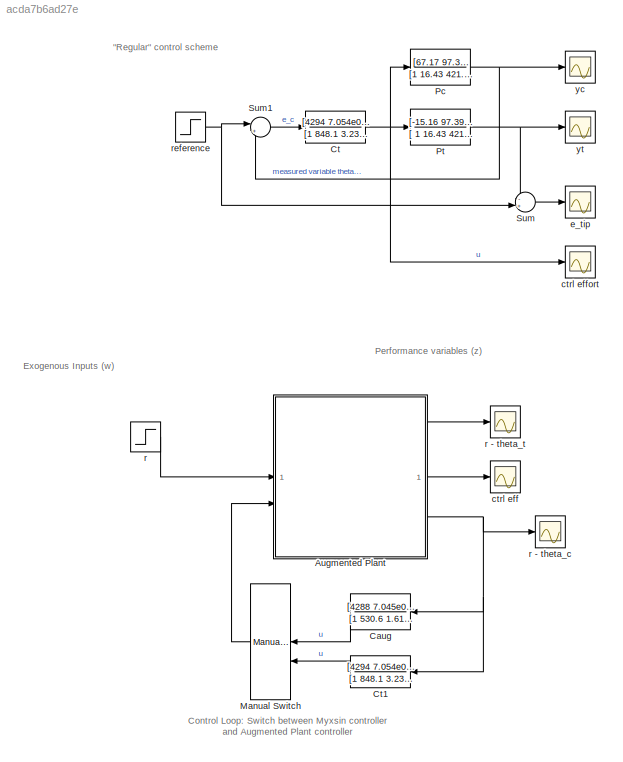
MODEL slx_acda7b6ad27e
KIND model
CONFIG AbsTol = auto
CONFIG EnableMultiTasking = off
CONFIG FixedStep = auto
CONFIG MaxStep = auto
CONFIG MinStep = auto
CONFIG RelTol = 1e-3
CONFIG SampleTimeConstraint = Unconstrained
CONFIG SolverName = VariableStepAuto
CONFIG StartTime = 0.0
CONFIG StopTime = 10.0
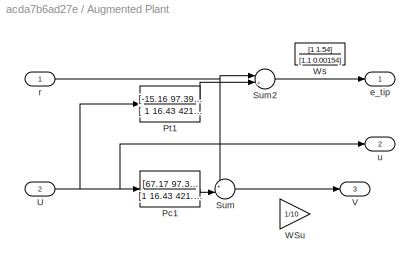
BLOCK [SubSystem] Augmented Plant
BLOCK [Outport] Augmented Plant/ V
  Port = 3
BLOCK [TransferFcn] Augmented Plant/Pc1
  Denominator = [1 16.43 421.6 0 0]
  Numerator = [67.17   97.39 2500]
BLOCK [TransferFcn] Augmented Plant/Pt1
  Denominator = [ 1 16.43 421.6 0 0]
  Numerator = [-15.16 97.39 2500]
BLOCK [Sum] Augmented Plant/Sum
  Inputs = +-|
BLOCK [Sum] Augmented Plant/Sum2
  Inputs = |+-
BLOCK [Inport] Augmented Plant/U
  Port = 2
BLOCK [Gain] Augmented Plant/WSu
  Gain = 1/10
BLOCK [TransferFcn] Augmented Plant/Ws
  Denominator = [1.1 0.00154]
  Numerator = [1 1.54]
BLOCK [Outport] Augmented Plant/e_tip
BLOCK [Inport] Augmented Plant/r
BLOCK [Outport] Augmented Plant/u
  Port = 2
BLOCK [TransferFcn] Caug
  Denominator = [1 530.6 1.615e04 1.011e05 2.895e06\n]
  Numerator = [4288 7.045e04 1.808e06 4895]
BLOCK [TransferFcn] Ct
  Denominator = [1 848.1 3.235e04 1.103e06 8.08e06 1.131e04]
  Numerator = [4294 7.054e04 1.81e06 87.56 0.002116]
BLOCK [TransferFcn] Ct1
  Denominator = [1 848.1 3.235e04 1.103e06 8.08e06 1.131e04]
  Numerator = [4294 7.054e04 1.81e06 87.56 0.002116]
BLOCK [ManualSwitch] Manual Switch
BLOCK [TransferFcn] Pc
  Denominator = [1 16.43 421.6 0 0]
  Numerator = [67.17   97.39 2500]
BLOCK [TransferFcn] Pt
  Denominator = [ 1 16.43 421.6 0 0]
  Numerator = [-15.16 97.39 2500]
BLOCK [Sum] Sum
  Inputs = -+|
BLOCK [Sum] Sum1
  Inputs = |+-
BLOCK [Scope] ctrl eff
  Floating = off
  NumInputPorts = 1
  ScopeSpecificationString = Simulink.scopes.TimeScopeBlockCfg('CurrentConfiguration', extmgr.ConfigurationSet(extmgr.Configuration('Core','General UI',true),extmgr.Configuration('Core','Source UI',true),extmgr.Configuration('Sources','WiredSimulink',true,'DataLoggingVariableName','ScopeData5'),extmgr.Configuration('Visuals','Time Domain',true,'SerializedDisplays',{struct('MinYLimReal','-1.0922','MaxYLimReal','5.42203','YLabe...<+1463ch>
BLOCK [Scope] ctrl effort
  Floating = off
  NumInputPorts = 1
  ScopeSpecificationString = Simulink.scopes.TimeScopeBlockCfg('CurrentConfiguration', extmgr.ConfigurationSet(extmgr.Configuration('Core','General UI',true),extmgr.Configuration('Core','Source UI',true),extmgr.Configuration('Sources','WiredSimulink',true,'DataLoggingVariableName','ScopeData3'),extmgr.Configuration('Visuals','Time Domain',true),extmgr.Configuration('Tools','Plot Navigation',true),extmgr.Configuration('Tools',...<+40ch>
BLOCK [Scope] e_tip
  Floating = off
  NumInputPorts = 1
  ScopeSpecificationString = Simulink.scopes.TimeScopeBlockCfg('CurrentConfiguration', extmgr.ConfigurationSet(extmgr.Configuration('Core','General UI',true),extmgr.Configuration('Core','Source UI',true),extmgr.Configuration('Sources','WiredSimulink',true,'DataLoggingVariableName','ScopeData2'),extmgr.Configuration('Visuals','Time Domain',true,'SerializedDisplays',{struct('MinYLimReal','-0.12822','MaxYLimReal','1.16409','YLab...<+1451ch>
BLOCK [Step] r
  SampleTime = 0
  Time = 0
BLOCK [Scope] r - theta_c
  Floating = off
  NumInputPorts = 1
  ScopeSpecificationString = Simulink.scopes.TimeScopeBlockCfg('CurrentConfiguration', extmgr.ConfigurationSet(extmgr.Configuration('Core','General UI',true),extmgr.Configuration('Core','Source UI',true),extmgr.Configuration('Sources','WiredSimulink',true,'DataLoggingVariableName','ScopeData4'),extmgr.Configuration('Visuals','Time Domain',true,'SerializedDisplays',{struct('MinYLimReal','-0.12386','MaxYLimReal','1.12487','YLab...<+1465ch>
BLOCK [Scope] r - theta_t
  Floating = off
  NumInputPorts = 1
  ScopeSpecificationString = Simulink.scopes.TimeScopeBlockCfg('CurrentConfiguration', extmgr.ConfigurationSet(extmgr.Configuration('Core','General UI',true),extmgr.Configuration('Core','Source UI',true),extmgr.Configuration('Sources','WiredSimulink',true,'DataLoggingVariableName','ScopeData6'),extmgr.Configuration('Visuals','Time Domain',true,'SerializedDisplays',{struct('MinYLimReal','-0.1282','MaxYLimReal','1.16397','YLabe...<+1463ch>
BLOCK [Step] reference
  SampleTime = 0
  Time = 0
BLOCK [Scope] yc
  Floating = off
  NumInputPorts = 1
  ScopeSpecificationString = Simulink.scopes.TimeScopeBlockCfg('CurrentConfiguration', extmgr.ConfigurationSet(extmgr.Configuration('Core','General UI',true),extmgr.Configuration('Core','Source UI',true),extmgr.Configuration('Sources','WiredSimulink',true),extmgr.Configuration('Visuals','Time Domain',true,'SerializedDisplays',{struct('MinYLimReal','-0.12487','MaxYLimReal','1.12386','YLabelReal','','MinYLimMag','0.00000','MaxY...<+1463ch>
BLOCK [Scope] yt
  Floating = off
  NumInputPorts = 1
  ScopeSpecificationString = Simulink.scopes.TimeScopeBlockCfg('CurrentConfiguration', extmgr.ConfigurationSet(extmgr.Configuration('Core','General UI',true),extmgr.Configuration('Core','Source UI',true),extmgr.Configuration('Sources','WiredSimulink',true,'DataLoggingVariableName','ScopeData1'),extmgr.Configuration('Visuals','Time Domain',true,'SerializedDisplays',{struct('MinYLimReal','-0.16409','MaxYLimReal','1.12822','YLab...<+1479ch>
ANNOTATION (root): "Regular" control scheme
ANNOTATION (root): Performance variables ( z )
ANNOTATION (root): Exogenous Inputs ( w )
ANNOTATION (root): Control Loop: Switch between Myxsin controller and Augmented Plant controller
LINE Augmented Plant/Pc1:1 -> Augmented Plant/Sum:2
LINE Augmented Plant/Pt1:1 -> Augmented Plant/Sum2:2
LINE Augmented Plant/Sum2:1 -> Augmented Plant/e_tip:1
LINE Augmented Plant/Sum:1 -> Augmented Plant/ V:1
NET Augmented Plant/U:1 -> Augmented Plant/Pc1:1, Augmented Plant/Pt1:1, Augmented Plant/u:1
NET Augmented Plant/r:1 -> Augmented Plant/Sum2:1, Augmented Plant/Sum:1
LINE Augmented Plant:1 -> r - theta_t:1
LINE Augmented Plant:2 -> ctrl eff:1
NET Augmented Plant:3 -> Caug:1, Ct1:1, r - theta_c:1
LINE Caug:1 -> Manual Switch:1
LINE Ct1:1 -> Manual Switch:2
NET Ct:1 -> Pc:1, Pt:1, ctrl effort:1
LINE Manual Switch:1 -> Augmented Plant:2
NET Pc:1 -> Sum1:2, yc:1
NET Pt:1 -> Sum:1, yt:1
LINE Sum1:1 -> Ct:1
LINE Sum:1 -> e_tip:1
LINE r:1 -> Augmented Plant:1
NET reference:1 -> Sum1:1, Sum:2
note: NET lines group one-source signal fan-out (src -> all destinations, sorted); 1:1 wires keep LINE
